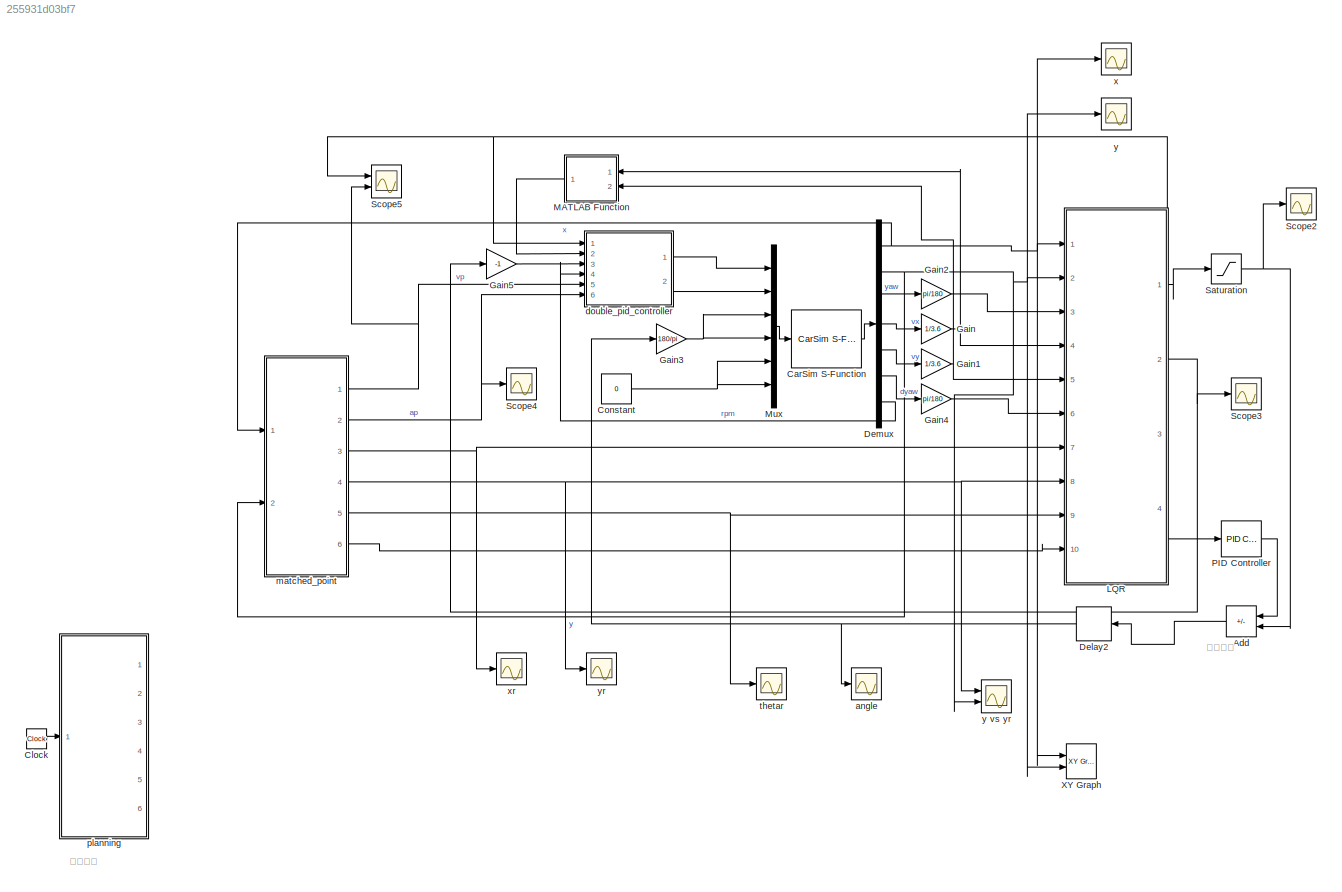
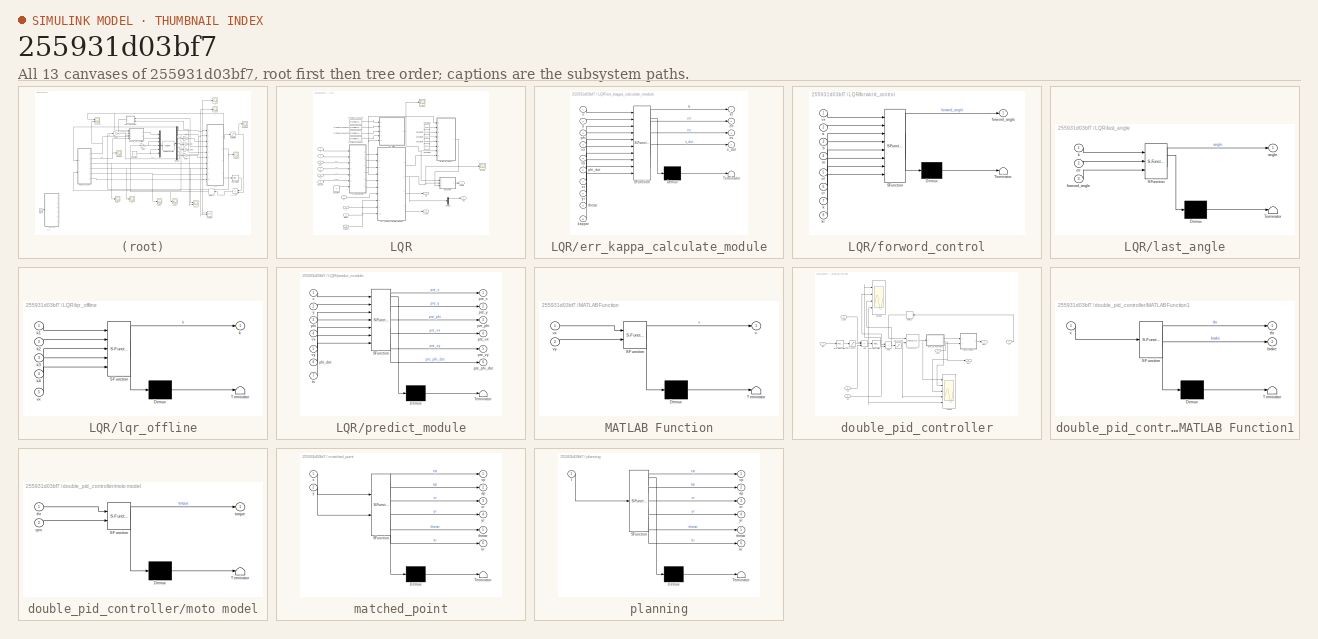
[diagram: thumbnail index - all 13 canvases of the model, root first then tree order]
MODEL slx_255931d03bf7
KIND model
CONFIG AbsTol = auto
CONFIG EnableMultiTasking = off
CONFIG FixedStep = auto
CONFIG MaxStep = auto
CONFIG MinStep = auto
CONFIG RelTol = 1e-3
CONFIG SampleTimeConstraint = Unconstrained
CONFIG SolverName = VariableStepAuto
CONFIG StartTime = 0.0
CONFIG StopTime = 160
BLOCK [Sum] Add
  IconShape = rectangular
  Inputs = -+
  NameLocation = top
  Ports = [2, 1]
BLOCK [Reference] CarSim S-Function  REF=Solver_SF/CarSim S-Function
  Ports = [1, 1]
  Priority = 1
  SourceBlock = Solver_SF/CarSim S-Function
  SourceProductName = CarSim S-Function
  SourceType = Vehicle math model library
BLOCK [Clock] Clock
  Commented = on
BLOCK [Constant] Constant
  Value = 0
BLOCK [Delay] Delay2
  DelayLength = 40
  InputPortMap = u0
  NameLocation = top
  Ports = [1, 1]
BLOCK [Demux] Demux
  Outputs = 7
  Ports = [1, 7]
BLOCK [Gain] Gain
  Gain = 1/3.6
BLOCK [Gain] Gain1
  Gain = 1/3.6
BLOCK [Gain] Gain2
  Gain = pi/180
BLOCK [Gain] Gain3
  Gain = 180/pi
BLOCK [Gain] Gain4
  Gain = pi/180
BLOCK [Gain] Gain5
  Gain = -1
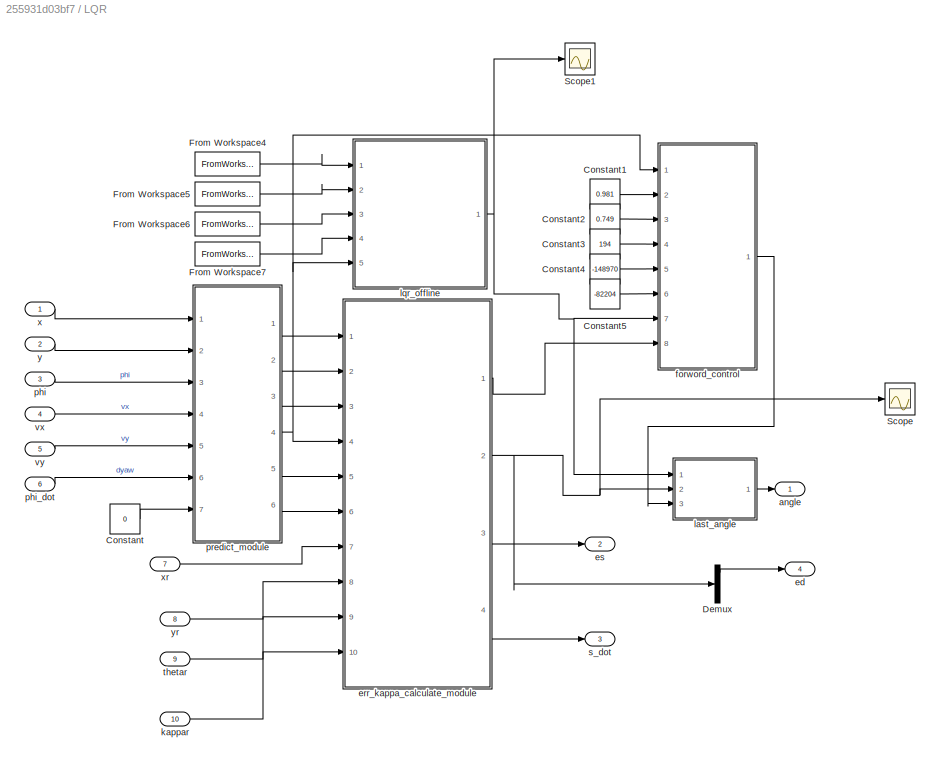
BLOCK [SubSystem] LQR
  Ports = [10, 4]
  RequestExecContextInheritance = off
BLOCK [Constant] LQR/Constant
  Value = 0
BLOCK [Constant] LQR/Constant1
  Value = 0.981
BLOCK [Constant] LQR/Constant2
  Value = 0.749
BLOCK [Constant] LQR/Constant3
  Value = 194
BLOCK [Constant] LQR/Constant4
  Value = -148970
BLOCK [Constant] LQR/Constant5
  Value = -82204
BLOCK [Demux] LQR/Demux
  Ports = [1, 4]
BLOCK [FromWorkspace] LQR/From Workspace4
  VariableName = k1
BLOCK [FromWorkspace] LQR/From Workspace5
  VariableName = k2
BLOCK [FromWorkspace] LQR/From Workspace6
  VariableName = k3
BLOCK [FromWorkspace] LQR/From Workspace7
  VariableName = k4
BLOCK [Scope] LQR/Scope
  Floating = off
  NumInputPorts = 1
  Ports = [1]
  ScopeSpecificationString = Simulink.scopes.TimeScopeBlockCfg('CurrentConfiguration', extmgr.ConfigurationSet(extmgr.Configuration('Core','General UI',true),extmgr.Configuration('Core','Source UI',true),extmgr.Configuration('Sources','WiredSimulink',true,'DataLoggingVariableName','ScopeData9'),extmgr.Configuration('Visuals','Time Domain',true,'SerializedDisplays',{struct('MinYLimReal','-0.35395','MaxYLimReal','0.57751','YLab...<+1641ch>
BLOCK [Scope] LQR/Scope1
  Floating = off
  NumInputPorts = 1
  Ports = [1]
  ScopeSpecificationString = Simulink.scopes.TimeScopeBlockCfg('CurrentConfiguration', extmgr.ConfigurationSet(extmgr.Configuration('Core','General UI',true),extmgr.Configuration('Core','Source UI',true),extmgr.Configuration('Sources','WiredSimulink',true,'DataLoggingVariableName','ScopeData1'),extmgr.Configuration('Visuals','Time Domain',true,'SerializedDisplays',{struct('MinYLimReal','-0.14744','MaxYLimReal','1.32285','YLab...<+1562ch>
BLOCK [Outport] LQR/angle
  VectorParamsAs1DForOutWhenUnconnected = off
BLOCK [Outport] LQR/ed
  Port = 4
  VectorParamsAs1DForOutWhenUnconnected = off
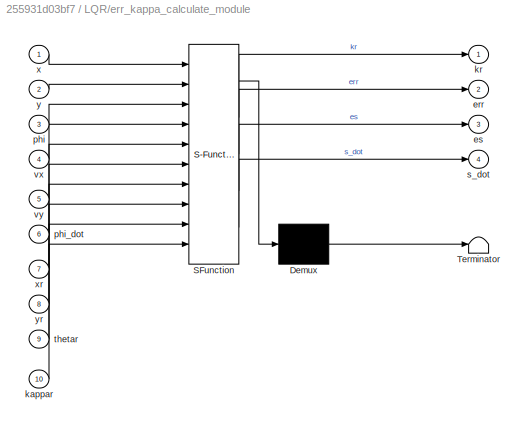
BLOCK [SubSystem] LQR/err_kappa_calculate_module
  ErrorFcn = Stateflow.Translate.translate
  PermitHierarchicalResolution = ExplicitOnly
  Ports = [10, 4]
  RequestExecContextInheritance = off
  SFBlockType = MATLAB Function
  TreatAsAtomicUnit = on
BLOCK [Demux] LQR/err_kappa_calculate_module/ Demux 
  Outputs = 1
  Ports = [1, 1]
BLOCK [S-Function] LQR/err_kappa_calculate_module/ SFunction 
  EnableBusSupport = on
  FunctionName = sf_sfun
  PortCounts = [10 5]
  Ports = [10, 5]
  SFcnIsStateOwnerBlock = off
  SFunctionDeploymentMode = off
  Tag = Stateflow S-Function 5
BLOCK [Terminator] LQR/err_kappa_calculate_module/ Terminator 
BLOCK [Outport] LQR/err_kappa_calculate_module/err
  Port = 2
  VectorParamsAs1DForOutWhenUnconnected = off
BLOCK [Outport] LQR/err_kappa_calculate_module/es
  Port = 3
  VectorParamsAs1DForOutWhenUnconnected = off
BLOCK [Inport] LQR/err_kappa_calculate_module/kappar
  Port = 10
BLOCK [Outport] LQR/err_kappa_calculate_module/kr
  VectorParamsAs1DForOutWhenUnconnected = off
BLOCK [Inport] LQR/err_kappa_calculate_module/phi
  Port = 3
BLOCK [Inport] LQR/err_kappa_calculate_module/phi_dot
  Port = 6
BLOCK [Outport] LQR/err_kappa_calculate_module/s_dot
  Port = 4
  VectorParamsAs1DForOutWhenUnconnected = off
BLOCK [Inport] LQR/err_kappa_calculate_module/thetar
  Port = 9
BLOCK [Inport] LQR/err_kappa_calculate_module/vx
  Port = 4
BLOCK [Inport] LQR/err_kappa_calculate_module/vy
  Port = 5
BLOCK [Inport] LQR/err_kappa_calculate_module/x
BLOCK [Inport] LQR/err_kappa_calculate_module/xr
  Port = 7
BLOCK [Inport] LQR/err_kappa_calculate_module/y
  Port = 2
BLOCK [Inport] LQR/err_kappa_calculate_module/yr
  Port = 8
BLOCK [Outport] LQR/es
  Port = 2
  VectorParamsAs1DForOutWhenUnconnected = off
BLOCK [SubSystem] LQR/forword_control
  ErrorFcn = Stateflow.Translate.translate
  PermitHierarchicalResolution = ExplicitOnly
  Ports = [8, 1]
  RequestExecContextInheritance = off
  SFBlockType = MATLAB Function
  TreatAsAtomicUnit = on
BLOCK [Demux] LQR/forword_control/ Demux 
  Outputs = 1
  Ports = [1, 1]
BLOCK [S-Function] LQR/forword_control/ SFunction 
  EnableBusSupport = on
  FunctionName = sf_sfun
  PortCounts = [8 2]
  Ports = [8, 2]
  SFcnIsStateOwnerBlock = off
  SFunctionDeploymentMode = off
  Tag = Stateflow S-Function 6
BLOCK [Terminator] LQR/forword_control/ Terminator 
BLOCK [Inport] LQR/forword_control/a
  Port = 2
BLOCK [Inport] LQR/forword_control/b
  Port = 3
BLOCK [Inport] LQR/forword_control/cf
  Port = 5
BLOCK [Inport] LQR/forword_control/cr
  Port = 6
BLOCK [Outport] LQR/forword_control/forword_angle
  VectorParamsAs1DForOutWhenUnconnected = off
BLOCK [Inport] LQR/forword_control/k
  Port = 7
BLOCK [Inport] LQR/forword_control/kr
  Port = 8
BLOCK [Inport] LQR/forword_control/m
  Port = 4
BLOCK [Inport] LQR/forword_control/vx
BLOCK [Inport] LQR/kappar
  Port = 10
BLOCK [SubSystem] LQR/last_angle
  ErrorFcn = Stateflow.Translate.translate
  PermitHierarchicalResolution = ExplicitOnly
  Ports = [3, 1]
  RequestExecContextInheritance = off
  SFBlockType = MATLAB Function
  TreatAsAtomicUnit = on
BLOCK [Demux] LQR/last_angle/ Demux 
  Outputs = 1
  Ports = [1, 1]
BLOCK [S-Function] LQR/last_angle/ SFunction 
  EnableBusSupport = on
  FunctionName = sf_sfun
  PortCounts = [3 2]
  Ports = [3, 2]
  SFcnIsStateOwnerBlock = off
  SFunctionDeploymentMode = off
  Tag = Stateflow S-Function 7
BLOCK [Terminator] LQR/last_angle/ Terminator 
BLOCK [Outport] LQR/last_angle/angle
  VectorParamsAs1DForOutWhenUnconnected = off
BLOCK [Inport] LQR/last_angle/err
  Port = 2
BLOCK [Inport] LQR/last_angle/forword_angle
  Port = 3
BLOCK [Inport] LQR/last_angle/k
BLOCK [SubSystem] LQR/lqr_offline
  ErrorFcn = Stateflow.Translate.translate
  PermitHierarchicalResolution = ExplicitOnly
  Ports = [5, 1]
  RequestExecContextInheritance = off
  SFBlockType = MATLAB Function
  TreatAsAtomicUnit = on
BLOCK [Demux] LQR/lqr_offline/ Demux 
  Outputs = 1
  Ports = [1, 1]
BLOCK [S-Function] LQR/lqr_offline/ SFunction 
  EnableBusSupport = on
  FunctionName = sf_sfun
  PortCounts = [5 2]
  Ports = [5, 2]
  SFcnIsStateOwnerBlock = off
  SFunctionDeploymentMode = off
  Tag = Stateflow S-Function 8
BLOCK [Terminator] LQR/lqr_offline/ Terminator 
BLOCK [Outport] LQR/lqr_offline/k
  VectorParamsAs1DForOutWhenUnconnected = off
BLOCK [Inport] LQR/lqr_offline/k1
BLOCK [Inport] LQR/lqr_offline/k2
  Port = 2
BLOCK [Inport] LQR/lqr_offline/k3
  Port = 3
BLOCK [Inport] LQR/lqr_offline/k4
  Port = 4
BLOCK [Inport] LQR/lqr_offline/vx
  Port = 5
BLOCK [Inport] LQR/phi
  Port = 3
BLOCK [Inport] LQR/phi_dot
  Port = 6
BLOCK [SubSystem] LQR/predict_module
  ErrorFcn = Stateflow.Translate.translate
  PermitHierarchicalResolution = ExplicitOnly
  Ports = [7, 6]
  RequestExecContextInheritance = off
  SFBlockType = MATLAB Function
  TreatAsAtomicUnit = on
BLOCK [Demux] LQR/predict_module/ Demux 
  Outputs = 1
  Ports = [1, 1]
BLOCK [S-Function] LQR/predict_module/ SFunction 
  EnableBusSupport = on
  FunctionName = sf_sfun
  PortCounts = [7 7]
  Ports = [7, 7]
  SFcnIsStateOwnerBlock = off
  SFunctionDeploymentMode = off
  Tag = Stateflow S-Function 9
BLOCK [Terminator] LQR/predict_module/ Terminator 
BLOCK [Inport] LQR/predict_module/phi
  Port = 3
BLOCK [Inport] LQR/predict_module/phi_dot
  Port = 6
BLOCK [Outport] LQR/predict_module/pre_phi
  Port = 3
  VectorParamsAs1DForOutWhenUnconnected = off
BLOCK [Outport] LQR/predict_module/pre_phi_dot
  Port = 6
  VectorParamsAs1DForOutWhenUnconnected = off
BLOCK [Outport] LQR/predict_module/pre_vx
  Port = 4
  VectorParamsAs1DForOutWhenUnconnected = off
BLOCK [Outport] LQR/predict_module/pre_vy
  Port = 5
  VectorParamsAs1DForOutWhenUnconnected = off
BLOCK [Outport] LQR/predict_module/pre_x
  VectorParamsAs1DForOutWhenUnconnected = off
BLOCK [Outport] LQR/predict_module/pre_y
  Port = 2
  VectorParamsAs1DForOutWhenUnconnected = off
BLOCK [Inport] LQR/predict_module/ts
  Port = 7
BLOCK [Inport] LQR/predict_module/vx
  Port = 4
BLOCK [Inport] LQR/predict_module/vy
  Port = 5
BLOCK [Inport] LQR/predict_module/x
BLOCK [Inport] LQR/predict_module/y
  Port = 2
BLOCK [Outport] LQR/s_dot
  Port = 3
  VectorParamsAs1DForOutWhenUnconnected = off
BLOCK [Inport] LQR/thetar
  Port = 9
BLOCK [Inport] LQR/vx
  Port = 4
BLOCK [Inport] LQR/vy
  Port = 5
BLOCK [Inport] LQR/x
BLOCK [Inport] LQR/xr
  Port = 7
BLOCK [Inport] LQR/y
  Port = 2
BLOCK [Inport] LQR/yr
  Port = 8
BLOCK [SubSystem] MATLAB Function
  ErrorFcn = Stateflow.Translate.translate
  NameLocation = top
  PermitHierarchicalResolution = ExplicitOnly
  Ports = [2, 1]
  RequestExecContextInheritance = off
  SFBlockType = MATLAB Function
  TreatAsAtomicUnit = on
BLOCK [Demux] MATLAB Function/ Demux 
  Outputs = 1
  Ports = [1, 1]
BLOCK [S-Function] MATLAB Function/ SFunction 
  EnableBusSupport = on
  FunctionName = sf_sfun
  PortCounts = [2 2]
  Ports = [2, 2]
  SFcnIsStateOwnerBlock = off
  SFunctionDeploymentMode = off
  Tag = Stateflow S-Function 4
BLOCK [Terminator] MATLAB Function/ Terminator 
BLOCK [Outport] MATLAB Function/v
  VectorParamsAs1DForOutWhenUnconnected = off
BLOCK [Inport] MATLAB Function/vx
BLOCK [Inport] MATLAB Function/vy
  Port = 2
BLOCK [Mux] Mux
  DisplayOption = bar
  Inputs = 6
  Ports = [6, 1]
BLOCK [Reference] PID Controller  REF=pid_lib/PID Controller
  Ports = [1, 1]
  SourceBlock = pid_lib/PID Controller
  SourceProductBaseCode = SL
  SourceType = PID 1dof
BLOCK [Saturate] Saturation
  LowerLimit = -1
  UpperLimit = 1
BLOCK [Scope] Scope2
  Floating = off
  NumInputPorts = 1
  Ports = [1]
  ScopeSpecificationString = Simulink.scopes.TimeScopeBlockCfg('CurrentConfiguration', extmgr.ConfigurationSet(extmgr.Configuration('Core','General UI',true),extmgr.Configuration('Core','Source UI',true),extmgr.Configuration('Sources','WiredSimulink',true,'DataLoggingVariableName','ScopeData1'),extmgr.Configuration('Visuals','Time Domain',true,'SerializedDisplays',{struct('MinYLimReal','-0.55359','MaxYLimReal','0.11029','YLab...<+1443ch>
BLOCK [Scope] Scope3
  Floating = off
  NumInputPorts = 1
  Ports = [1]
  ScopeSpecificationString = Simulink.scopes.TimeScopeBlockCfg('CurrentConfiguration', extmgr.ConfigurationSet(extmgr.Configuration('Core','General UI',true),extmgr.Configuration('Core','Source UI',true),extmgr.Configuration('Sources','WiredSimulink',true,'DataLoggingVariableName','ScopeData3'),extmgr.Configuration('Visuals','Time Domain',true,'SerializedDisplays',{struct('MinYLimReal','-2.08923','MaxYLimReal','1.50045','YLab...<+1409ch>
BLOCK [Scope] Scope4
  Floating = off
  NumInputPorts = 1
  Ports = [1]
  ScopeSpecificationString = Simulink.scopes.TimeScopeBlockCfg('CurrentConfiguration', extmgr.ConfigurationSet(extmgr.Configuration('Core','General UI',true),extmgr.Configuration('Core','Source UI',true),extmgr.Configuration('Sources','WiredSimulink',true,'DataLoggingVariableName','ScopeData4'),extmgr.Configuration('Visuals','Time Domain',true,'SerializedDisplays',{struct('MinYLimReal','-8.16207','MaxYLimReal','2.7177','YLabe...<+1431ch>
BLOCK [Scope] Scope5
  Floating = off
  NumInputPorts = 2
  Ports = [2]
  ScopeSpecificationString = Simulink.scopes.TimeScopeBlockCfg('CurrentConfiguration', extmgr.ConfigurationSet(extmgr.Configuration('Core','General UI',true),extmgr.Configuration('Core','Source UI',true),extmgr.Configuration('Sources','WiredSimulink',true,'DataLoggingVariableName','ScopeData5'),extmgr.Configuration('Visuals','Time Domain',true,'SerializedDisplays',{struct('MinYLimReal','-0.15897','MaxYLimReal','1.36335','YLab...<+1443ch>
BLOCK [Reference] XY Graph  REF=simulink/Sinks/XY Graph
  Commented = on
  Ports = [2]
  SourceBlock = simulink/Sinks/XY Graph
  SourceProductBaseCode = SL
  SourceType = XY scope.
BLOCK [Scope] angle
  Floating = off
  NumInputPorts = 1
  Ports = [1]
  ScopeSpecificationString = Simulink.scopes.TimeScopeBlockCfg('CurrentConfiguration', extmgr.ConfigurationSet(extmgr.Configuration('Core','General UI',true),extmgr.Configuration('Core','Source UI',true),extmgr.Configuration('Sources','WiredSimulink',true,'DataLoggingVariableName','ScopeData8'),extmgr.Configuration('Visuals','Time Domain',true,'SerializedDisplays',{struct('MinYLimReal','-0.56299','MaxYLimReal','0.46374','YLab...<+1438ch>
BLOCK [SubSystem] double_pid_controller
  Ports = [6, 2]
  RequestExecContextInheritance = off
BLOCK [Sum] double_pid_controller/Add
  IconShape = rectangular
  Inputs = -++
  Ports = [3, 1]
BLOCK [Sum] double_pid_controller/Add2
  IconShape = rectangular
  Ports = [2, 1]
BLOCK [Delay] double_pid_controller/Delay2
  DelayLength = 40
  InputPortMap = u0
  NameLocation = top
  Ports = [1, 1]
BLOCK [SubSystem] double_pid_controller/MATLAB Function1
  ErrorFcn = Stateflow.Translate.translate
  PermitHierarchicalResolution = ExplicitOnly
  Ports = [1, 2]
  RequestExecContextInheritance = off
  SFBlockType = MATLAB Function
  TreatAsAtomicUnit = on
BLOCK [Demux] double_pid_controller/MATLAB Function1/ Demux 
  Outputs = 1
  Ports = [1, 1]
BLOCK [S-Function] double_pid_controller/MATLAB Function1/ SFunction 
  EnableBusSupport = on
  FunctionName = sf_sfun
  PortCounts = [1 3]
  Ports = [1, 3]
  SFcnIsStateOwnerBlock = off
  SFunctionDeploymentMode = off
  Tag = Stateflow S-Function 1
BLOCK [Terminator] double_pid_controller/MATLAB Function1/ Terminator 
BLOCK [Outport] double_pid_controller/MATLAB Function1/brake
  Port = 2
  VectorParamsAs1DForOutWhenUnconnected = off
BLOCK [Outport] double_pid_controller/MATLAB Function1/thr
  VectorParamsAs1DForOutWhenUnconnected = off
BLOCK [Inport] double_pid_controller/MATLAB Function1/x
BLOCK [Outport] double_pid_controller/Out1
  VectorParamsAs1DForOutWhenUnconnected = off
BLOCK [Outport] double_pid_controller/Out2
  Port = 2
  VectorParamsAs1DForOutWhenUnconnected = off
BLOCK [Reference] double_pid_controller/PID Controller  REF=pid_lib/PID Controller
  Ports = [1, 1]
  SourceBlock = pid_lib/PID Controller
  SourceProductBaseCode = SL
  SourceType = PID 1dof
BLOCK [Reference] double_pid_controller/PID Controller1  REF=pid_lib/PID Controller
  Ports = [1, 1]
  SourceBlock = pid_lib/PID Controller
  SourceProductBaseCode = SL
  SourceType = PID 1dof
BLOCK [Saturate] double_pid_controller/Saturation
  LowerLimit = -8
  UpperLimit = 5
BLOCK [Saturate] double_pid_controller/Saturation1
  LowerLimit = -10
  UpperLimit = 10
BLOCK [Scope] double_pid_controller/Scope
  Floating = off
  NumInputPorts = 5
  Ports = [5]
  ScopeSpecificationString = Simulink.scopes.TimeScopeBlockCfg('CurrentConfiguration', extmgr.ConfigurationSet(extmgr.Configuration('Core','General UI',true),extmgr.Configuration('Core','Source UI',true),extmgr.Configuration('Sources','WiredSimulink',true,'DataLoggingVariableName','ScopeData2'),extmgr.Configuration('Visuals','Time Domain',true,'SerializedDisplays',{struct('MinYLimReal','-0.74373','MaxYLimReal','0.73217','YLab...<+5200ch>
BLOCK [Scope] double_pid_controller/Scope1
  Floating = off
  NumInputPorts = 4
  Ports = [4]
  ScopeSpecificationString = Simulink.scopes.TimeScopeBlockCfg('CurrentConfiguration', extmgr.ConfigurationSet(extmgr.Configuration('Core','General UI',true),extmgr.Configuration('Core','Source UI',true),extmgr.Configuration('Sources','WiredSimulink',true,'DataLoggingVariableName','ScopeData3'),extmgr.Configuration('Visuals','Time Domain',true,'SerializedDisplays',{struct('MinYLimReal','-7.69822','MaxYLimReal','7.75565','YLab...<+3062ch>
BLOCK [Inport] double_pid_controller/ap
  Port = 6
BLOCK [Inport] double_pid_controller/es
  Port = 3
BLOCK [SubSystem] double_pid_controller/moto model
  ErrorFcn = Stateflow.Translate.translate
  PermitHierarchicalResolution = ExplicitOnly
  Ports = [2, 1]
  RequestExecContextInheritance = off
  SFBlockType = MATLAB Function
  TreatAsAtomicUnit = on
BLOCK [Demux] double_pid_controller/moto model/ Demux 
  Outputs = 1
  Ports = [1, 1]
BLOCK [S-Function] double_pid_controller/moto model/ SFunction 
  EnableBusSupport = on
  FunctionName = sf_sfun
  PortCounts = [2 2]
  Ports = [2, 2]
  SFcnIsStateOwnerBlock = off
  SFunctionDeploymentMode = off
  Tag = Stateflow S-Function 2
BLOCK [Terminator] double_pid_controller/moto model/ Terminator 
BLOCK [Inport] double_pid_controller/moto model/rpm
  Port = 2
BLOCK [Inport] double_pid_controller/moto model/thr
BLOCK [Outport] double_pid_controller/moto model/torque
  VectorParamsAs1DForOutWhenUnconnected = off
BLOCK [Inport] double_pid_controller/rpm
  Port = 4
BLOCK [Inport] double_pid_controller/s_dot
BLOCK [Inport] double_pid_controller/v
  Port = 2
BLOCK [Inport] double_pid_controller/vp
  Port = 5
BLOCK [Lookup_n-D] double_pid_controller/油门刹车合并标定表
  BreakpointsForDimension1 = vubr
  BreakpointsForDimension2 = aubr
  InputPortMap = u0,u1
  InternalRulePriority = Speed
  Ports = [2, 1]
  RndMeth = Simplest
  Table = tablebr
BLOCK [SubSystem] matched_point
  ErrorFcn = Stateflow.Translate.translate
  PermitHierarchicalResolution = ExplicitOnly
  Ports = [2, 6]
  RequestExecContextInheritance = off
  SFBlockType = MATLAB Function
  TreatAsAtomicUnit = on
BLOCK [Demux] matched_point/ Demux 
  Outputs = 1
  Ports = [1, 1]
BLOCK [S-Function] matched_point/ SFunction 
  EnableBusSupport = on
  FunctionName = sf_sfun
  Parameters = ref_line
  PortCounts = [2 7]
  Ports = [2, 7]
  SFcnIsStateOwnerBlock = off
  SFunctionDeploymentMode = off
  Tag = Stateflow S-Function 10
BLOCK [Terminator] matched_point/ Terminator 
BLOCK [Outport] matched_point/ap
  Port = 2
BLOCK [Outport] matched_point/kr
  Port = 6
BLOCK [Outport] matched_point/thetar
  Port = 5
BLOCK [Outport] matched_point/vp
BLOCK [Inport] matched_point/x
BLOCK [Outport] matched_point/xr
  Port = 3
BLOCK [Inport] matched_point/y
  Port = 2
BLOCK [Outport] matched_point/yr
  Port = 4
BLOCK [SubSystem] planning
  Commented = on
  ErrorFcn = Stateflow.Translate.translate
  PermitHierarchicalResolution = ExplicitOnly
  Ports = [1, 6]
  RequestExecContextInheritance = off
  SFBlockType = MATLAB Function
  TreatAsAtomicUnit = on
BLOCK [Demux] planning/ Demux 
  Outputs = 1
  Ports = [1, 1]
BLOCK [S-Function] planning/ SFunction 
  EnableBusSupport = on
  FunctionName = sf_sfun
  PortCounts = [1 7]
  Ports = [1, 7]
  SFcnIsStateOwnerBlock = off
  SFunctionDeploymentMode = off
  Tag = Stateflow S-Function 3
BLOCK [Terminator] planning/ Terminator 
BLOCK [Outport] planning/ap
  Port = 2
  VectorParamsAs1DForOutWhenUnconnected = off
BLOCK [Outport] planning/kr
  Port = 6
  VectorParamsAs1DForOutWhenUnconnected = off
BLOCK [Inport] planning/t
BLOCK [Outport] planning/thetar
  Port = 5
  VectorParamsAs1DForOutWhenUnconnected = off
BLOCK [Outport] planning/vp
  VectorParamsAs1DForOutWhenUnconnected = off
BLOCK [Outport] planning/xr
  Port = 3
  VectorParamsAs1DForOutWhenUnconnected = off
BLOCK [Outport] planning/yr
  Port = 4
  VectorParamsAs1DForOutWhenUnconnected = off
BLOCK [Scope] thetar
  Floating = off
  NumInputPorts = 1
  Ports = [1]
  ScopeSpecificationString = Simulink.scopes.TimeScopeBlockCfg('CurrentConfiguration', extmgr.ConfigurationSet(extmgr.Configuration('Core','General UI',true),extmgr.Configuration('Core','Source UI',true),extmgr.Configuration('Sources','WiredSimulink',true,'DataLoggingVariableName','ScopeData7'),extmgr.Configuration('Visuals','Time Domain',true,'SerializedDisplays',{struct('MinYLimReal','-3.92602','MaxYLimReal','3.92197','YLab...<+1379ch>
BLOCK [Scope] x
  Floating = off
  NumInputPorts = 1
  Ports = [1]
  ScopeSpecificationString = Simulink.scopes.TimeScopeBlockCfg('CurrentConfiguration', extmgr.ConfigurationSet(extmgr.Configuration('Core','General UI',true),extmgr.Configuration('Core','Source UI',true),extmgr.Configuration('Sources','WiredSimulink',true,'DataLoggingVariableName','ScopeRealX','DataLogging',true,'DataLoggingSaveFormat','Array'),extmgr.Configuration('Visuals','Time Domain',true,'SerializedDisplays',{struct('Mi...<+1442ch>
BLOCK [Scope] xr
  Floating = off
  NumInputPorts = 1
  Ports = [1]
  ScopeSpecificationString = Simulink.scopes.TimeScopeBlockCfg('CurrentConfiguration', extmgr.ConfigurationSet(extmgr.Configuration('Core','General UI',true),extmgr.Configuration('Core','Source UI',true),extmgr.Configuration('Sources','WiredSimulink',true,'DataLoggingVariableName','ScopeMatchedX','DataLogging',true,'DataLoggingSaveFormat','Array'),extmgr.Configuration('Visuals','Time Domain',true,'SerializedDisplays',{struct(...<+1435ch>
BLOCK [Scope] y
  Floating = off
  NumInputPorts = 1
  Ports = [1]
  ScopeSpecificationString = Simulink.scopes.TimeScopeBlockCfg('CurrentConfiguration', extmgr.ConfigurationSet(extmgr.Configuration('Core','General UI',true),extmgr.Configuration('Core','Source UI',true),extmgr.Configuration('Sources','WiredSimulink',true,'DataLoggingVariableName','ScopeRealY','DataLogging',true,'DataLoggingSaveFormat','Array'),extmgr.Configuration('Visuals','Time Domain',true,'SerializedDisplays',{struct('Mi...<+1442ch>
BLOCK [Scope] y vs yr
  Floating = off
  NumInputPorts = 2
  Ports = [2]
  ScopeSpecificationString = Simulink.scopes.TimeScopeBlockCfg('CurrentConfiguration', extmgr.ConfigurationSet(extmgr.Configuration('Core','General UI',true),extmgr.Configuration('Core','Source UI',true),extmgr.Configuration('Sources','WiredSimulink',true),extmgr.Configuration('Visuals','Time Domain',true,'SerializedDisplays',{struct('MinYLimReal','-15.41991','MaxYLimReal','51.16647','YLabelReal','','MinYLimMag','0.00000','Ma...<+1390ch>
BLOCK [Scope] yr
  Floating = off
  NumInputPorts = 1
  Ports = [1]
  ScopeSpecificationString = Simulink.scopes.TimeScopeBlockCfg('CurrentConfiguration', extmgr.ConfigurationSet(extmgr.Configuration('Core','General UI',true),extmgr.Configuration('Core','Source UI',true),extmgr.Configuration('Sources','WiredSimulink',true,'DataLoggingVariableName','ScopeMatchedY','DataLogging',true,'DataLoggingSaveFormat','Array'),extmgr.Configuration('Visuals','Time Domain',true,'SerializedDisplays',{struct(...<+1435ch>
ANNOTATION (root): 规划接口
ANNOTATION (root): 转向不足
LINE Add:1 -> Delay2:1
LINE CarSim S-Function:1 -> Demux:1
LINE Clock:1 -> planning:1
NET Constant:1 -> Mux:5, Mux:6
NET Delay2:1 -> Gain3:1, angle:1
NET Demux:1 -> LQR:1, XY Graph:1, matched_point:1, x:1
NET Demux:2 -> LQR:2, XY Graph:2, matched_point:2, y vs yr:2, y:1
LINE Demux:3 -> Gain2:1
LINE Demux:4 -> Gain:1
LINE Demux:5 -> Gain1:1
LINE Demux:6 -> Gain4:1
LINE Demux:7 -> double_pid_controller:4
NET Gain1:1 -> LQR:5, MATLAB Function:2
LINE Gain2:1 -> LQR:3
NET Gain3:1 -> Mux:3, Mux:4
LINE Gain4:1 -> LQR:6
LINE Gain5:1 -> double_pid_controller:3
NET Gain:1 -> LQR:4, MATLAB Function:1
LINE LQR/Constant1:1 -> LQR/forword_control:2
LINE LQR/Constant2:1 -> LQR/forword_control:3
LINE LQR/Constant3:1 -> LQR/forword_control:4
LINE LQR/Constant4:1 -> LQR/forword_control:5
LINE LQR/Constant5:1 -> LQR/forword_control:6
LINE LQR/Constant:1 -> LQR/predict_module:7
LINE LQR/Demux:1 -> LQR/ed:1
LINE LQR/From Workspace4:1 -> LQR/lqr_offline:1
LINE LQR/From Workspace5:1 -> LQR/lqr_offline:2
LINE LQR/From Workspace6:1 -> LQR/lqr_offline:3
LINE LQR/From Workspace7:1 -> LQR/lqr_offline:4
LINE LQR/err_kappa_calculate_module:1 -> LQR/forword_control:8
NET LQR/err_kappa_calculate_module:2 -> LQR/Demux:1, LQR/Scope:1, LQR/last_angle:2
LINE LQR/err_kappa_calculate_module:3 -> LQR/es:1
LINE LQR/err_kappa_calculate_module:4 -> LQR/s_dot:1
LINE LQR/forword_control:1 -> LQR/last_angle:3
LINE LQR/kappar:1 -> LQR/err_kappa_calculate_module:10
LINE LQR/last_angle:1 -> LQR/angle:1
NET LQR/lqr_offline:1 -> LQR/Scope1:1, LQR/forword_control:7, LQR/last_angle:1
LINE LQR/phi:1 -> LQR/predict_module:3
LINE LQR/phi_dot:1 -> LQR/predict_module:6
LINE LQR/predict_module:1 -> LQR/err_kappa_calculate_module:1
LINE LQR/predict_module:2 -> LQR/err_kappa_calculate_module:2
LINE LQR/predict_module:3 -> LQR/err_kappa_calculate_module:3
NET LQR/predict_module:4 -> LQR/err_kappa_calculate_module:4, LQR/forword_control:1, LQR/lqr_offline:5
LINE LQR/predict_module:5 -> LQR/err_kappa_calculate_module:5
LINE LQR/predict_module:6 -> LQR/err_kappa_calculate_module:6
LINE LQR/thetar:1 -> LQR/err_kappa_calculate_module:9
LINE LQR/vx:1 -> LQR/predict_module:4
LINE LQR/vy:1 -> LQR/predict_module:5
LINE LQR/x:1 -> LQR/predict_module:1
LINE LQR/xr:1 -> LQR/err_kappa_calculate_module:7
LINE LQR/y:1 -> LQR/predict_module:2
LINE LQR/yr:1 -> LQR/err_kappa_calculate_module:8
LINE LQR:1 -> Saturation:1
NET LQR:2 -> Gain5:1, Scope3:1
NET LQR:3 -> Scope5:1, double_pid_controller:1
LINE LQR:4 -> PID Controller:1
LINE MATLAB Function:1 -> double_pid_controller:2
LINE Mux:1 -> CarSim S-Function:1
LINE PID Controller:1 -> Add:1
NET Saturation:1 -> Add:2, Scope2:1
NET double_pid_controller/Add2:1 -> double_pid_controller/Saturation:1, double_pid_controller/Scope1:3
NET double_pid_controller/Add:1 -> double_pid_controller/PID Controller:1, double_pid_controller/Scope1:4, double_pid_controller/Scope:5
LINE double_pid_controller/Delay2:1 -> double_pid_controller/油门刹车合并标定表:1
NET double_pid_controller/MATLAB Function1:1 -> double_pid_controller/Scope:2, double_pid_controller/moto model:1
NET double_pid_controller/MATLAB Function1:2 -> double_pid_controller/Out2:1, double_pid_controller/Scope:3
LINE double_pid_controller/PID Controller1:1 -> double_pid_controller/Saturation1:1
NET double_pid_controller/PID Controller:1 -> double_pid_controller/Add2:1, double_pid_controller/Scope1:1
LINE double_pid_controller/Saturation1:1 -> double_pid_controller/Add:2
NET double_pid_controller/Saturation:1 -> double_pid_controller/Scope:4, double_pid_controller/油门刹车合并标定表:2
NET double_pid_controller/ap:1 -> double_pid_controller/Add2:2, double_pid_controller/Scope1:2
LINE double_pid_controller/es:1 -> double_pid_controller/PID Controller1:1
LINE double_pid_controller/moto model:1 -> double_pid_controller/Out1:1
LINE double_pid_controller/rpm:1 -> double_pid_controller/moto model:2
LINE double_pid_controller/s_dot:1 -> double_pid_controller/Add:1
LINE double_pid_controller/v:1 -> double_pid_controller/Delay2:1
LINE double_pid_controller/vp:1 -> double_pid_controller/Add:3
NET double_pid_controller/油门刹车合并标定表:1 -> double_pid_controller/MATLAB Function1:1, double_pid_controller/Scope:1
LINE double_pid_controller:1 -> Mux:1
LINE double_pid_controller:2 -> Mux:2
NET matched_point:1 -> Scope5:2, double_pid_controller:5
NET matched_point:2 -> Scope4:1, double_pid_controller:6
NET matched_point:3 -> LQR:7, xr:1
NET matched_point:4 -> LQR:8, y vs yr:1, yr:1
NET matched_point:5 -> LQR:9, thetar:1
LINE matched_point:6 -> LQR:10
note: NET lines group one-source signal fan-out (src -> all destinations, sorted); 1:1 wires keep LINE
CHART LQR/predict_module states=1 transitions=1
  STATE_LABEL 'eML_blk_kernel()'
  STATE_LABEL 'SCRIPT:\nfunction [pre_x,pre_y,pre_phi,pre_vx,pre_vy,pre_phi_dot] = fcn(x,y,phi,vx,vy,phi_dot,ts)\n    pre_x=x+vx*ts*cos(phi)-vy*ts*sin(phi);\n    pre_y=y+vy*ts*cos(phi)+vx*ts*sin(phi);\n    pre_phi=phi+phi_dot*ts;\n    pre_vx=vx;\n    pre_vy=vy;\n    pre_phi_dot=phi_dot;\nend\n\n'
CHART matched_point states=1 transitions=1
  STATE_LABEL 'eML_blk_kernel()'
  STATE_LABEL 'SCRIPT:\nfunction [vp, ap, xr, yr, thetar, kr] = fcn(x, y, ref_line)\n    min_len = (ref_line(1,1)-x)^2 + (ref_line(1,2)-y)^2;\n    index = 1;\n    for i=1:length(ref_line)\n        mid_len = (ref_line(i,1)-x)^2 + (ref_line(i,2)-y)^2;\n        if mid_len <= min_len\n            index = i;\n            min_len = mid_len;\n        end\n    end\n    vp = ref_line(index,4);\n    ap = ref_line(index,5);\n    xr = r...<+189ch>'
CHART double_pid_controller/MATLAB Function1 states=1 transitions=1
  STATE_LABEL 'eML_blk_kernel()'
  STATE_LABEL 'SCRIPT:\nfunction [thr,brake] = fcn(x)\n    %正数代表油门，负数代表刹车\n    %不允许同时踩油门和刹车\n    if x>=0\n        thr=x;\n        brake=0;\n    else\n        thr=0;\n        brake=-x;\n    end\n'
CHART double_pid_controller/moto model states=1 transitions=1
  STATE_LABEL 'eML_blk_kernel()'
  STATE_LABEL 'SCRIPT:\nfunction torque = fcn(thr,rpm)\nTmax=380*thr;\n    if (rpm<=4523)\n        torque=Tmax;\n    else\n        torque=Tmax*4523/rpm;\n    end\nend\n'
CHART planning states=1 transitions=1
  STATE_LABEL 'eML_blk_kernel()'
  STATE_LABEL 'SCRIPT:\nfunction [vp,ap,xr,yr,thetar,kr] = fcn(t)\n    dx=100;\n    dy=10;\n    T=30;\n    xstart=[0,0,0];\n    xend=[dx,0,0];\n    ystart=[0,0,0];\n    yend=[dy,0,0];\n    a=zeros(1,6);\n    b=zeros(1,6);\n    \n    a(1)=xstart(1);\n    a(2)=xstart(2);\n    a(3)=xstart(3)/2;\n    A1=[T^3,T^4,T^5;\n        3*T^2,4*T^3,5*T^4;\n        6*T,12*T^2,20*T^3];\n    B1=[xend(1)-a(1)-a(2)*T-a(3)*T^2;\n        xend(2)-a(2)-2...<+1065ch>'
CHART MATLAB Function states=1 transitions=1
  STATE_LABEL 'eML_blk_kernel()'
  STATE_LABEL 'SCRIPT:\nfunction v = fcn(vx,vy)\n    v=sqrt(vx^2+vy^2);\n    \n\n'
CHART LQR/err_kappa_calculate_module states=1 transitions=1
  STATE_LABEL 'eML_blk_kernel()'
  STATE_LABEL "SCRIPT:\nfunction [kr,err,es,s_dot] = fcn(x,y,phi,vx,vy,phi_dot,xr,yr,thetar,kappar)\n    \n    tor=[cos(thetar);sin(thetar)];\n    nor=[-sin(thetar);cos(thetar)];\n    d_err=[x-xr;y-yr];\n    ed=nor'*d_err;\n    es=tor'*d_err;\n    %projection_point_thetar=thetar;%apollo\n    projection_point_thetar=thetar+kappar*es;\n    ed_dot=vy*cos(phi-projection_point_thetar)+vx*sin(phi-projection_point_thetar);\n    %...<+333ch>"
CHART LQR/forword_control states=1 transitions=1
  STATE_LABEL 'eML_blk_kernel()'
  STATE_LABEL 'SCRIPT:\nfunction forword_angle = fcn(vx,a,b,m,cf,cr,k,kr)\n    forword_angle=kr*(a+b-b*k(3)-(m*vx*vx/(a+b))*((b/cf)+(a/cr)*k(3)-(a/cr)));\nend\n'
CHART LQR/last_angle states=1 transitions=1
  STATE_LABEL 'eML_blk_kernel()'
  STATE_LABEL 'SCRIPT:\nfunction angle = fcn(k,err,forword_angle)\n    angle=-k*err+forword_angle;\nend\n'
CHART LQR/lqr_offline states=1 transitions=1
  STATE_LABEL 'eML_blk_kernel()'
  STATE_LABEL 'SCRIPT:\nfunction k  = fcn(k1,k2,k3,k4,vx)\n    if abs(vx)<0.01\n        k=[0,0,0,0];\n    else\n        index=abs(round(vx/0.01));\n        k=[k1(index),k2(index),k3(index),k4(index)];\n    end\nend\n\n'
CHART  states=0 transitions=0
CHART  states=0 transitions=0
CHART  states=0 transitions=0
CHART  states=0 transitions=0
CHART  states=0 transitions=0
CHART  states=0 transitions=0
CHART  states=0 transitions=0
CHART  states=0 transitions=0
CHART  states=0 transitions=0
CHART  states=0 transitions=0
